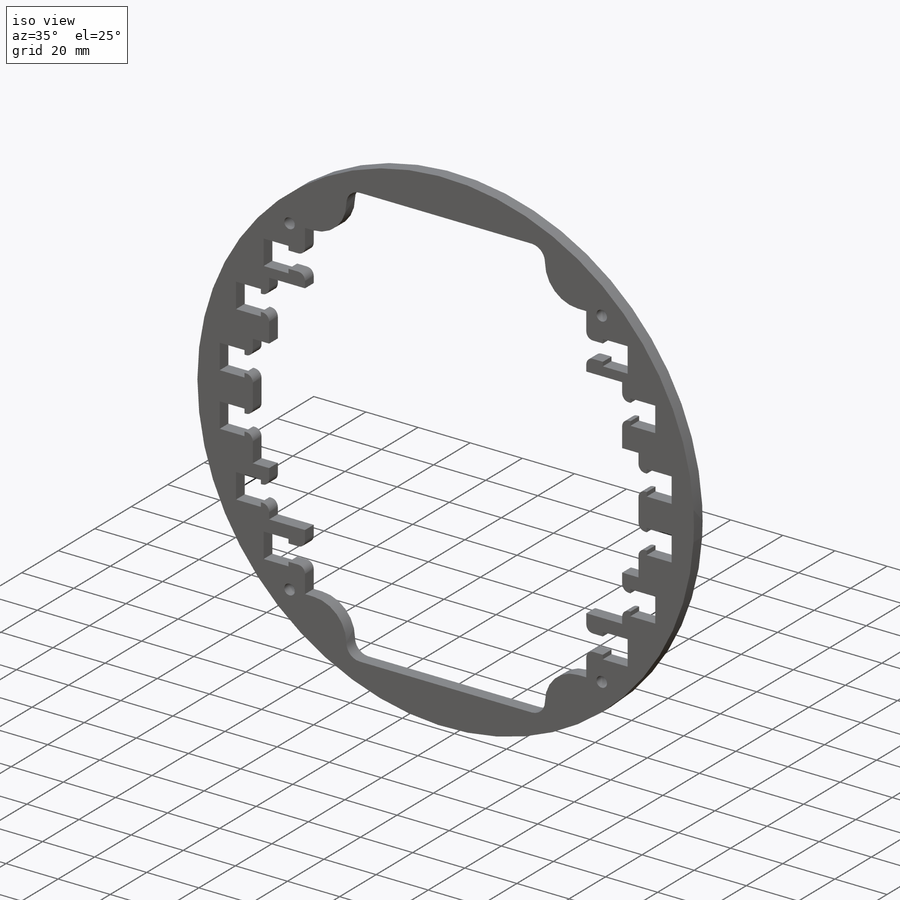
[diagram: iso view]
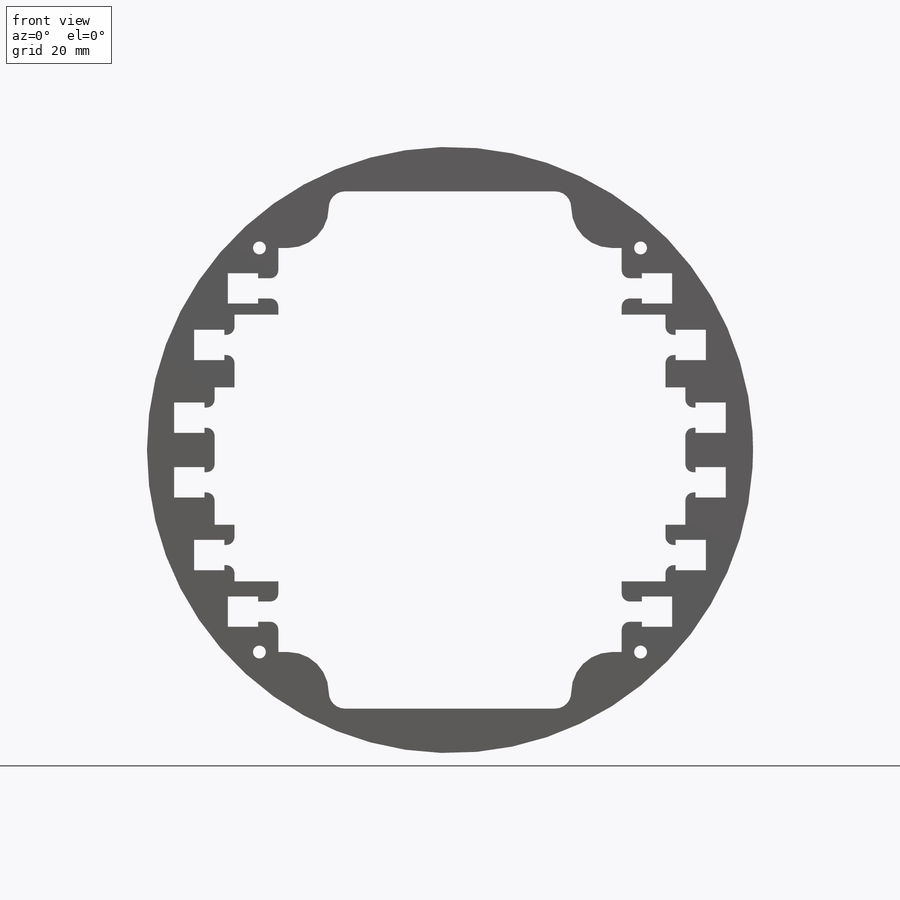
[diagram: front view]
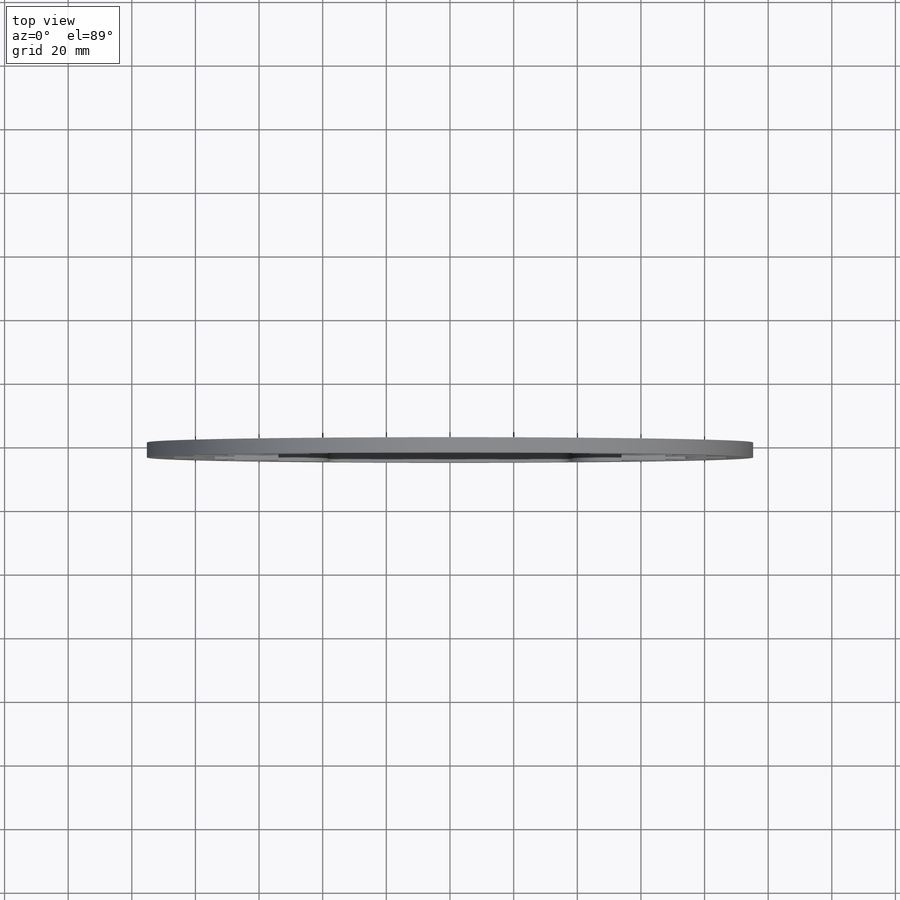
[diagram: top view]
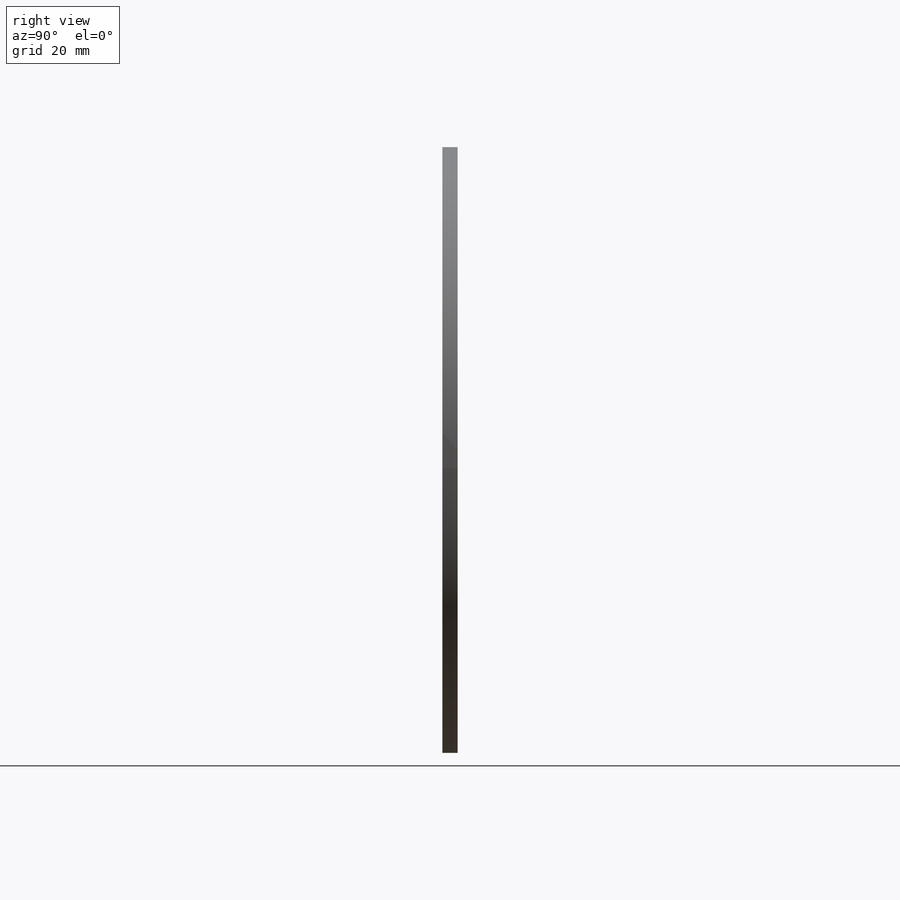
[diagram: right view]
SOLIDWORKS PART (.sldprt)
format: sldprt  version: not decoded by parser v0  size: 539,648 bytes
history: native  units: mm
features: sketch x7, cut_extrude x4, fillet x3, thread x2, material x1, extrude x1, hole x1, mirror x1 (+11 scaffold rows collapsed)
feature tree (31):
  scaffold x11  (default folders/planes/origin — collapsed)
  material  "Delrin 2700 NC010, Low Viscosity Acetal Copolymer (SS)"
  sketch  "Sketch1"  dims[D1=190.5mm]
  extrude  "Boss-Extrude1"  Depth=4.7625mm
  sketch  "Sketch11"  dims[D1=165.1mm D2=9.525mm D3=9.525mm D4=1.5875mm D5=1.5875mm D6=1.5875mm D7=50.8mm D8=9.525mm D9=9.525mm D10=1.5875mm D11=1.5875mm D12=33.02mm D13=1.5875mm D14=9.525mm D15=9.525mm D16=1.5875mm D17=1.5875mm D18=1.5875mm D19=10.16mm]
  cut_extrude  "Cut-Extrude1"  [1 undecoded]
  sketch  "Sketch12"
  cut_extrude  "Cut-Extrude2"  [1 undecoded]
  sketch  "Sketch13"  dims[D1=9.525mm D2=6.35mm D3=3.175mm D4=6.35mm D5=6.35mm D6=6.35mm D7=3.175mm D8=6.35mm]
  cut_extrude  "Cut-Extrude3"  [1 undecoded]
  hole  "#10-32 Tapped Hole1"  Diameter=4.0386mm Depth=11.938mm
  sketch  "Sketch10"  dims[D1=63.5mm D2=~119.783705mm]
  sketch  "Sketch9"  dims[hole-wizard template sketch: 47 standard entries collapsed; hole parameters kept: c15.Tap Drill Depth=11.938mm c15.D3=~14.816244mm c15.Drill Angle=180.0deg]
  thread  "Hole Thread35"  Diameter=4.7625mm  [1 undecoded]
  thread  "Hole Thread36"  Diameter=4.7625mm  [1 undecoded]
  mirror  "Mirror1"
  sketch  "Sketch14"  dims[D1=81.28mm D2=38.1mm]
  cut_extrude  "Cut-Extrude4"  [1 undecoded]
  fillet  "Fillet1"  Radius=12.7mm
  fillet  "Fillet2"  Radius=5.08mm
  fillet  "Fillet3"  Radius=2.54mm
decode coverage: 13 of 19 modeling features carry decoded parameters
note: ~ marks probable driven/reference dimensions
note: 6 parameter values undecoded
summary: no parameter record found for 4 features
note: suppression state not decoded; provenance and decode notes live in map.json
